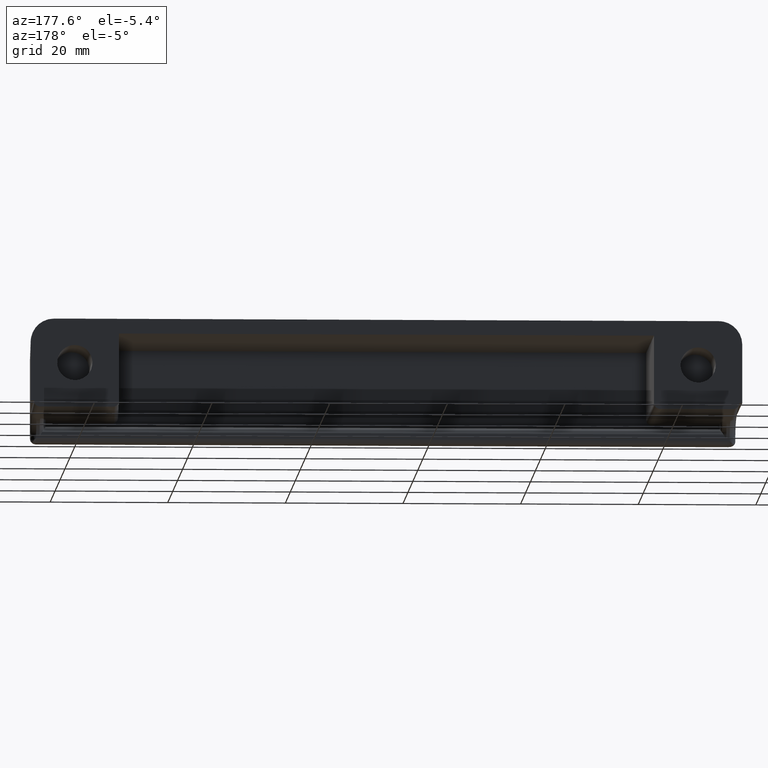
[diagram: clean part render]
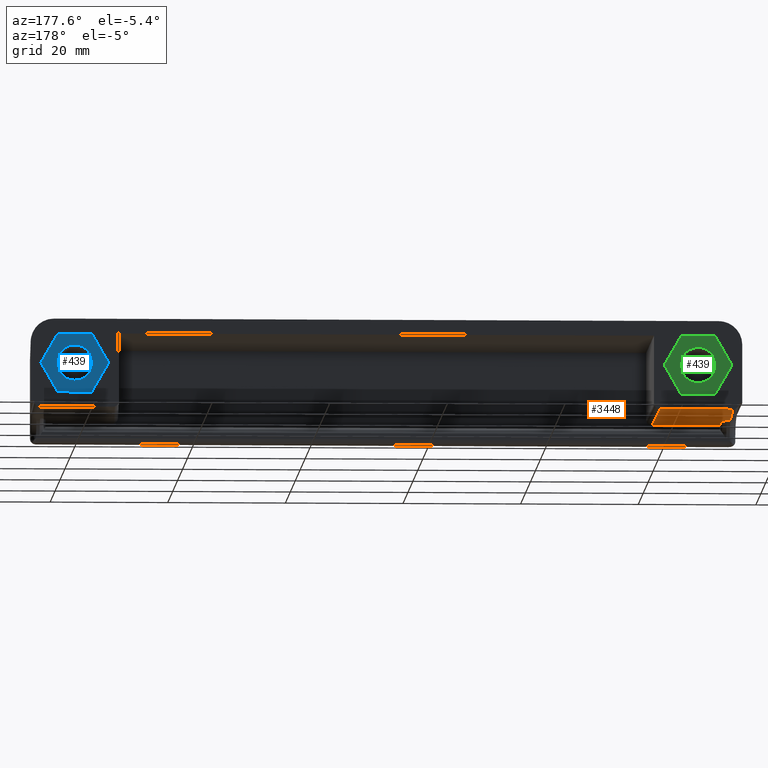
[diagram: same view with three faces highlighted in distinct colors, each labeled with its STEP entity id]
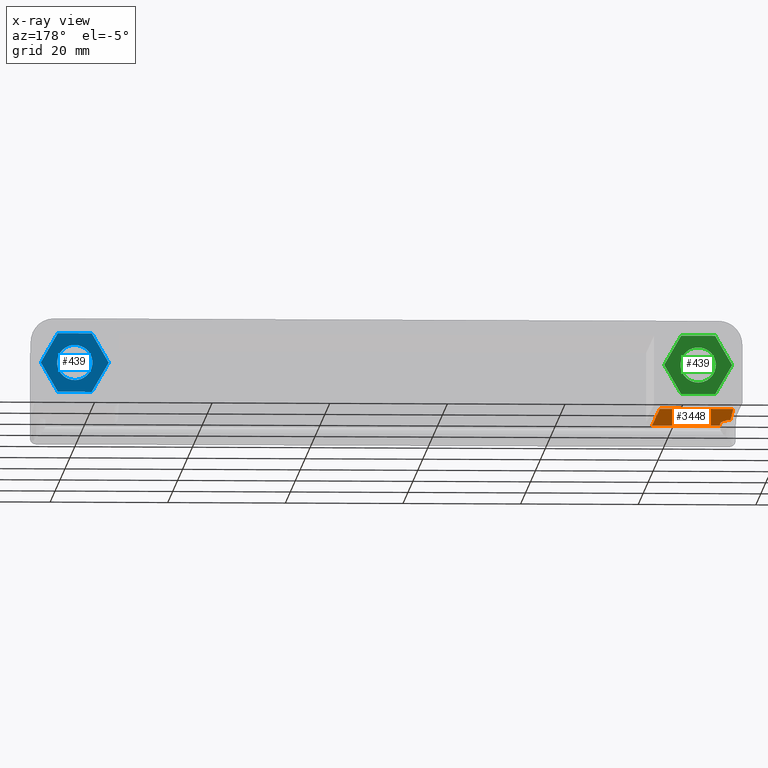
[diagram: x-ray of the same camera — body ghosted, the three highlighted faces saturated]
A machine part, auxiliary view with three faces highlighted in distinct colors.
The next image is the same camera in x-ray (body ghosted, the three faces saturated) — at least one of them is partly hidden behind the body in this view.
Their STEP definitions:

[orange] entity #3448 — the highlighted face is a freeform B-spline surface patch.
#625=CARTESIAN_POINT('',(-111.387362999999990,-11.706406187103941,-8.307338012903610));
#626=VERTEX_POINT('',#625);
#640=CARTESIAN_POINT('',(-110.387362999999990,-14.345887941823500,-8.489371159617638));
#641=VERTEX_POINT('',#640);
#642=CARTESIAN_POINT('',(-110.387362999999990,-14.345887941823500,-8.489371159617638));
#643=CARTESIAN_POINT('',(-110.387362999999990,-14.225465864256210,-8.481066192298121));
#644=CARTESIAN_POINT('',(-110.396813370679400,-14.106604035896989,-8.472868828326300));
#645=CARTESIAN_POINT('',(-110.430173036044100,-13.871267536835729,-8.456638731874905));
#646=CARTESIAN_POINT('',(-110.454129768531200,-13.754800698079640,-8.448606539529306));
#647=CARTESIAN_POINT('',(-110.513747004256000,-13.523799304460329,-8.432675415739318));
#648=CARTESIAN_POINT('',(-110.549570700804000,-13.408948175267939,-8.424754651591901));
#649=CARTESIAN_POINT('',(-110.629460174507900,-13.184140278891549,-8.409250665360366));
#650=CARTESIAN_POINT('',(-110.673610058144600,-13.073766476606480,-8.401638682247082));
#651=CARTESIAN_POINT('',(-110.815548400394110,-12.747225986621540,-8.379118658073699));
#652=CARTESIAN_POINT('',(-110.922772624118910,-12.535614664255039,-8.364524780005846));
#653=CARTESIAN_POINT('',(-111.149078432836010,-12.118116474489110,-8.335731813699255));
#654=CARTESIAN_POINT('',(-111.268275076433000,-11.912184767121509,-8.321529633050238));
#655=CARTESIAN_POINT('',(-111.387362999999990,-11.706406187103941,-8.307338012903610));
#656=B_SPLINE_CURVE_WITH_KNOTS('',3,(#642,#643,#644,#645,#646,#647,#648,#649,#650,#651,#652,#653,#654,#655),.UNSPECIFIED.,.F.,.U.,(4,2,2,2,2,2,4),(0.0,0.125000000000002,0.250000000000004,0.375000000000006,0.500000000000008,0.750000000000004,1.0),.UNSPECIFIED.);
#657=EDGE_CURVE('',#641,#626,#656,.T.);
#771=CARTESIAN_POINT('',(-98.887093457232808,-17.500000000000000,-8.706896036238559));
#772=VERTEX_POINT('',#771);
#788=CARTESIAN_POINT('',(-99.498206923338401,0.0,-7.499999999999799));
#789=VERTEX_POINT('',#788);
#790=CARTESIAN_POINT('',(-99.498206923338401,0.0,-7.499999999999799));
#791=CARTESIAN_POINT('',(-98.887093457232808,-17.500000000000000,-8.706896036238559));
#792=QUASI_UNIFORM_CURVE('',1,(#790,#791),.UNSPECIFIED.,.F.,.U.);
#793=EDGE_CURVE('',#789,#772,#792,.T.);
#2326=CARTESIAN_POINT('',(-111.958728000000210,-11.706406187103941,-8.307338012903610));
#2327=VERTEX_POINT('',#2326);
#2385=CARTESIAN_POINT('',(-111.958728000000210,0.0,-7.499999999999799));
#2386=VERTEX_POINT('',#2385);
#2404=CARTESIAN_POINT('',(-111.958728000000210,-11.706406187103941,-8.307338012903610));
#2405=CARTESIAN_POINT('',(-111.958728000000210,0.0,-7.499999999999799));
#2406=QUASI_UNIFORM_CURVE('',1,(#2404,#2405),.UNSPECIFIED.,.F.,.U.);
#2407=EDGE_CURVE('',#2327,#2386,#2406,.T.);
#3132=CARTESIAN_POINT('',(-110.387362999999990,-17.500000000000000,-8.706896036238559));
#3133=VERTEX_POINT('',#3132);
#3134=CARTESIAN_POINT('',(-110.387362999999990,-17.500000000000000,-8.706896036238559));
#3135=CARTESIAN_POINT('',(-110.387362999999990,-14.345887941823500,-8.489371159617638));
#3136=QUASI_UNIFORM_CURVE('',1,(#3134,#3135),.UNSPECIFIED.,.F.,.U.);
#3137=EDGE_CURVE('',#3133,#641,#3136,.T.);
#3235=CARTESIAN_POINT('',(-110.387362999999990,-17.500000000000000,-8.706896036238559));
#3236=CARTESIAN_POINT('',(-98.887093457232808,-17.500000000000000,-8.706896036238559));
#3237=QUASI_UNIFORM_CURVE('',1,(#3235,#3236),.UNSPECIFIED.,.F.,.U.);
#3238=EDGE_CURVE('',#3133,#772,#3237,.T.);
#3426=CARTESIAN_POINT('',(-112.611652976391200,0.874124966081606,-7.439715545328872));
#3427=CARTESIAN_POINT('',(-112.611652976391200,-18.374125435468180,-8.767180523280956));
#3428=CARTESIAN_POINT('',(-98.234164156669607,0.874124966081606,-7.439715545328872));
#3429=CARTESIAN_POINT('',(-98.234164156669607,-18.374125435468180,-8.767180523280956));
#3430=B_SPLINE_SURFACE_WITH_KNOTS('',1,1,((#3426,#3428),(#3427,#3429)),.UNSPECIFIED.,.F.,.F.,.U.,(2,2),(2,2),(0.0,19.293970736695201),(0.0,14.377488819721560),.UNSPECIFIED.);
#3431=CARTESIAN_POINT('',(-111.958728000000210,0.0,-7.499999999999799));
#3432=CARTESIAN_POINT('',(-99.498206923338401,0.0,-7.499999999999799));
#3433=QUASI_UNIFORM_CURVE('',1,(#3431,#3432),.UNSPECIFIED.,.F.,.U.);
#3434=EDGE_CURVE('',#2386,#789,#3433,.T.);
#3435=ORIENTED_EDGE('',*,*,#3434,.T.);
#3436=ORIENTED_EDGE('',*,*,#793,.T.);
#3437=ORIENTED_EDGE('',*,*,#3238,.F.);
#3438=ORIENTED_EDGE('',*,*,#3137,.T.);
#3439=ORIENTED_EDGE('',*,*,#657,.T.);
#3440=CARTESIAN_POINT('',(-111.958728000000210,-11.706406187103941,-8.307338012903610));
#3441=CARTESIAN_POINT('',(-111.387362999999990,-11.706406187103941,-8.307338012903610));
#3442=QUASI_UNIFORM_CURVE('',1,(#3440,#3441),.UNSPECIFIED.,.F.,.U.);
#3443=EDGE_CURVE('',#2327,#626,#3442,.T.);
#3444=ORIENTED_EDGE('',*,*,#3443,.F.);
#3445=ORIENTED_EDGE('',*,*,#2407,.T.);
#3446=EDGE_LOOP('',(#3435,#3436,#3437,#3438,#3439,#3444,#3445));
#3447=FACE_OUTER_BOUND('',#3446,.T.);
#3448=ADVANCED_FACE('',(#3447),#3430,.F.);

[blue] entity #439 — the highlighted face is a freeform B-spline surface patch.
#79=CARTESIAN_POINT('',(-2.990752001170108,8.326673E-017,0.235377287555510));
#80=VERTEX_POINT('',#79);
#86=CARTESIAN_POINT('',(0.0,0.0,3.0));
#87=VERTEX_POINT('',#86);
#88=CARTESIAN_POINT('',(0.0,0.0,3.0));
#89=CARTESIAN_POINT('',(-2.773171474282663,0.0,3.000000000000000));
#90=CARTESIAN_POINT('',(-2.990752001170108,8.326673E-017,0.235377287555511));
#98=(BOUNDED_CURVE()B_SPLINE_CURVE(2,(#88,#89,#90),.UNSPECIFIED.,.F.,.U.)B_SPLINE_CURVE_WITH_KNOTS((3,3),(0.0,0.236331300590125),.UNSPECIFIED.)CURVE()GEOMETRIC_REPRESENTATION_ITEM()RATIONAL_B_SPLINE_CURVE((1.0,0.723120658655155,0.969723356082825))REPRESENTATION_ITEM(''));
#99=EDGE_CURVE('',#87,#80,#98,.T.);
#101=CARTESIAN_POINT('',(2.990752001170109,8.326673E-017,-0.235377287555510));
#102=VERTEX_POINT('',#101);
#103=CARTESIAN_POINT('',(2.990752001170109,8.326673E-017,-0.235377287555510));
#104=CARTESIAN_POINT('',(3.000000000000000,0.0,-0.117870321396710));
#105=CARTESIAN_POINT('',(3.0,0.0,0.0));
#106=CARTESIAN_POINT('',(3.0,0.0,3.0));
#107=CARTESIAN_POINT('',(0.0,0.0,3.0));
#115=(BOUNDED_CURVE()B_SPLINE_CURVE(2,(#103,#104,#105,#106,#107),.UNSPECIFIED.,.F.,.U.)B_SPLINE_CURVE_WITH_KNOTS((3,2,3),(0.736331300590125,0.750000000000000,1.0),.UNSPECIFIED.)CURVE()GEOMETRIC_REPRESENTATION_ITEM()RATIONAL_B_SPLINE_CURVE((0.969723356082825,0.983986122531393,1.0,0.707106781186548,1.0))REPRESENTATION_ITEM(''));
#116=EDGE_CURVE('',#102,#87,#115,.T.);
#192=CARTESIAN_POINT('',(0.0,0.0,-3.0));
#193=VERTEX_POINT('',#192);
#194=CARTESIAN_POINT('',(0.0,0.0,-3.0));
#195=CARTESIAN_POINT('',(2.773171474282656,0.0,-3.000000000000000));
#196=CARTESIAN_POINT('',(2.990752001170109,8.326673E-017,-0.235377287555510));
#204=(BOUNDED_CURVE()B_SPLINE_CURVE(2,(#194,#195,#196),.UNSPECIFIED.,.F.,.U.)B_SPLINE_CURVE_WITH_KNOTS((3,3),(0.500000000000000,0.736331300590125),.UNSPECIFIED.)CURVE()GEOMETRIC_REPRESENTATION_ITEM()RATIONAL_B_SPLINE_CURVE((1.0,0.723120658655155,0.969723356082824))REPRESENTATION_ITEM(''));
#205=EDGE_CURVE('',#193,#102,#204,.T.);
#207=CARTESIAN_POINT('',(-2.990752001170109,8.326673E-017,0.235377287555511));
#208=CARTESIAN_POINT('',(-3.0,0.0,0.117870321396710));
#209=CARTESIAN_POINT('',(-3.0,0.0,0.0));
#210=CARTESIAN_POINT('',(-3.0,0.0,-3.0));
#211=CARTESIAN_POINT('',(0.0,0.0,-3.0));
#219=(BOUNDED_CURVE()B_SPLINE_CURVE(2,(#207,#208,#209,#210,#211),.UNSPECIFIED.,.F.,.U.)B_SPLINE_CURVE_WITH_KNOTS((3,2,3),(0.236331300590125,0.250000000000000,0.500000000000000),.UNSPECIFIED.)CURVE()GEOMETRIC_REPRESENTATION_ITEM()RATIONAL_B_SPLINE_CURVE((0.969723356082825,0.983986122531393,1.0,0.707106781186548,1.0))REPRESENTATION_ITEM(''));
#220=EDGE_CURVE('',#80,#193,#219,.T.);
#293=CARTESIAN_POINT('',(-2.886750999999890,0.0,-5.0));
#294=VERTEX_POINT('',#293);
#295=CARTESIAN_POINT('',(-5.773502999999890,0.0,0.0));
#296=VERTEX_POINT('',#295);
#297=CARTESIAN_POINT('',(-2.886750999999890,0.0,-5.0));
#298=CARTESIAN_POINT('',(-5.773502999999890,0.0,0.0));
#299=QUASI_UNIFORM_CURVE('',1,(#297,#298),.UNSPECIFIED.,.F.,.U.);
#300=EDGE_CURVE('',#294,#296,#299,.T.);
#321=CARTESIAN_POINT('',(2.886751000000120,0.0,-5.0));
#322=VERTEX_POINT('',#321);
#323=CARTESIAN_POINT('',(2.886751000000120,0.0,-5.0));
#324=CARTESIAN_POINT('',(-2.886750999999890,0.0,-5.0));
#325=QUASI_UNIFORM_CURVE('',1,(#323,#324),.UNSPECIFIED.,.F.,.U.);
#326=EDGE_CURVE('',#322,#294,#325,.T.);
#343=CARTESIAN_POINT('',(5.773503000000120,0.0,0.0));
#344=VERTEX_POINT('',#343);
#345=CARTESIAN_POINT('',(5.773503000000120,0.0,0.0));
#346=CARTESIAN_POINT('',(2.886751000000120,0.0,-5.0));
#347=QUASI_UNIFORM_CURVE('',1,(#345,#346),.UNSPECIFIED.,.F.,.U.);
#348=EDGE_CURVE('',#344,#322,#347,.T.);
#365=CARTESIAN_POINT('',(2.886751000000120,0.0,5.0));
#366=VERTEX_POINT('',#365);
#367=CARTESIAN_POINT('',(2.886751000000120,0.0,5.0));
#368=CARTESIAN_POINT('',(5.773503000000120,0.0,0.0));
#369=QUASI_UNIFORM_CURVE('',1,(#367,#368),.UNSPECIFIED.,.F.,.U.);
#370=EDGE_CURVE('',#366,#344,#369,.T.);
#387=CARTESIAN_POINT('',(-2.886750999999890,0.0,5.0));
#388=VERTEX_POINT('',#387);
#389=CARTESIAN_POINT('',(-2.886750999999890,0.0,5.0));
#390=CARTESIAN_POINT('',(2.886751000000120,0.0,5.0));
#391=QUASI_UNIFORM_CURVE('',1,(#389,#390),.UNSPECIFIED.,.F.,.U.);
#392=EDGE_CURVE('',#388,#366,#391,.T.);
#409=CARTESIAN_POINT('',(-5.773502999999890,0.0,0.0));
#410=CARTESIAN_POINT('',(-2.886750999999890,0.0,5.0));
#411=QUASI_UNIFORM_CURVE('',1,(#409,#410),.UNSPECIFIED.,.F.,.U.);
#412=EDGE_CURVE('',#296,#388,#411,.T.);
#420=CARTESIAN_POINT('',(-6.350275777670506,0.0,5.499499980618059));
#421=CARTESIAN_POINT('',(6.350275364717620,0.0,5.499499980618059));
#422=CARTESIAN_POINT('',(-6.350275777670506,0.0,-5.499500248838960));
#423=CARTESIAN_POINT('',(6.350275364717620,0.0,-5.499500248838960));
#424=B_SPLINE_SURFACE_WITH_KNOTS('',1,1,((#420,#422),(#421,#423)),.UNSPECIFIED.,.F.,.F.,.U.,(2,2),(2,2),(0.0,12.700551142388131),(0.0,10.999000229457019),.UNSPECIFIED.);
#425=ORIENTED_EDGE('',*,*,#412,.T.);
#426=ORIENTED_EDGE('',*,*,#392,.T.);
#427=ORIENTED_EDGE('',*,*,#370,.T.);
#428=ORIENTED_EDGE('',*,*,#348,.T.);
#429=ORIENTED_EDGE('',*,*,#326,.T.);
#430=ORIENTED_EDGE('',*,*,#300,.T.);
#431=EDGE_LOOP('',(#425,#426,#427,#428,#429,#430));
#432=FACE_OUTER_BOUND('',#431,.T.);
#433=ORIENTED_EDGE('',*,*,#205,.T.);
#434=ORIENTED_EDGE('',*,*,#116,.T.);
#435=ORIENTED_EDGE('',*,*,#99,.T.);
#436=ORIENTED_EDGE('',*,*,#220,.T.);
#437=EDGE_LOOP('',(#433,#434,#435,#436));
#438=FACE_BOUND('',#437,.T.);
#439=ADVANCED_FACE('',(#432,#438),#424,.T.);

[green] entity #439 — the highlighted face is a freeform B-spline surface patch.
#79=CARTESIAN_POINT('',(-2.990752001170108,8.326673E-017,0.235377287555510));
#80=VERTEX_POINT('',#79);
#86=CARTESIAN_POINT('',(0.0,0.0,3.0));
#87=VERTEX_POINT('',#86);
#88=CARTESIAN_POINT('',(0.0,0.0,3.0));
#89=CARTESIAN_POINT('',(-2.773171474282663,0.0,3.000000000000000));
#90=CARTESIAN_POINT('',(-2.990752001170108,8.326673E-017,0.235377287555511));
#98=(BOUNDED_CURVE()B_SPLINE_CURVE(2,(#88,#89,#90),.UNSPECIFIED.,.F.,.U.)B_SPLINE_CURVE_WITH_KNOTS((3,3),(0.0,0.236331300590125),.UNSPECIFIED.)CURVE()GEOMETRIC_REPRESENTATION_ITEM()RATIONAL_B_SPLINE_CURVE((1.0,0.723120658655155,0.969723356082825))REPRESENTATION_ITEM(''));
#99=EDGE_CURVE('',#87,#80,#98,.T.);
#101=CARTESIAN_POINT('',(2.990752001170109,8.326673E-017,-0.235377287555510));
#102=VERTEX_POINT('',#101);
#103=CARTESIAN_POINT('',(2.990752001170109,8.326673E-017,-0.235377287555510));
#104=CARTESIAN_POINT('',(3.000000000000000,0.0,-0.117870321396710));
#105=CARTESIAN_POINT('',(3.0,0.0,0.0));
#106=CARTESIAN_POINT('',(3.0,0.0,3.0));
#107=CARTESIAN_POINT('',(0.0,0.0,3.0));
#115=(BOUNDED_CURVE()B_SPLINE_CURVE(2,(#103,#104,#105,#106,#107),.UNSPECIFIED.,.F.,.U.)B_SPLINE_CURVE_WITH_KNOTS((3,2,3),(0.736331300590125,0.750000000000000,1.0),.UNSPECIFIED.)CURVE()GEOMETRIC_REPRESENTATION_ITEM()RATIONAL_B_SPLINE_CURVE((0.969723356082825,0.983986122531393,1.0,0.707106781186548,1.0))REPRESENTATION_ITEM(''));
#116=EDGE_CURVE('',#102,#87,#115,.T.);
#192=CARTESIAN_POINT('',(0.0,0.0,-3.0));
#193=VERTEX_POINT('',#192);
#194=CARTESIAN_POINT('',(0.0,0.0,-3.0));
#195=CARTESIAN_POINT('',(2.773171474282656,0.0,-3.000000000000000));
#196=CARTESIAN_POINT('',(2.990752001170109,8.326673E-017,-0.235377287555510));
#204=(BOUNDED_CURVE()B_SPLINE_CURVE(2,(#194,#195,#196),.UNSPECIFIED.,.F.,.U.)B_SPLINE_CURVE_WITH_KNOTS((3,3),(0.500000000000000,0.736331300590125),.UNSPECIFIED.)CURVE()GEOMETRIC_REPRESENTATION_ITEM()RATIONAL_B_SPLINE_CURVE((1.0,0.723120658655155,0.969723356082824))REPRESENTATION_ITEM(''));
#205=EDGE_CURVE('',#193,#102,#204,.T.);
#207=CARTESIAN_POINT('',(-2.990752001170109,8.326673E-017,0.235377287555511));
#208=CARTESIAN_POINT('',(-3.0,0.0,0.117870321396710));
#209=CARTESIAN_POINT('',(-3.0,0.0,0.0));
#210=CARTESIAN_POINT('',(-3.0,0.0,-3.0));
#211=CARTESIAN_POINT('',(0.0,0.0,-3.0));
#219=(BOUNDED_CURVE()B_SPLINE_CURVE(2,(#207,#208,#209,#210,#211),.UNSPECIFIED.,.F.,.U.)B_SPLINE_CURVE_WITH_KNOTS((3,2,3),(0.236331300590125,0.250000000000000,0.500000000000000),.UNSPECIFIED.)CURVE()GEOMETRIC_REPRESENTATION_ITEM()RATIONAL_B_SPLINE_CURVE((0.969723356082825,0.983986122531393,1.0,0.707106781186548,1.0))REPRESENTATION_ITEM(''));
#220=EDGE_CURVE('',#80,#193,#219,.T.);
#293=CARTESIAN_POINT('',(-2.886750999999890,0.0,-5.0));
#294=VERTEX_POINT('',#293);
#295=CARTESIAN_POINT('',(-5.773502999999890,0.0,0.0));
#296=VERTEX_POINT('',#295);
#297=CARTESIAN_POINT('',(-2.886750999999890,0.0,-5.0));
#298=CARTESIAN_POINT('',(-5.773502999999890,0.0,0.0));
#299=QUASI_UNIFORM_CURVE('',1,(#297,#298),.UNSPECIFIED.,.F.,.U.);
#300=EDGE_CURVE('',#294,#296,#299,.T.);
#321=CARTESIAN_POINT('',(2.886751000000120,0.0,-5.0));
#322=VERTEX_POINT('',#321);
#323=CARTESIAN_POINT('',(2.886751000000120,0.0,-5.0));
#324=CARTESIAN_POINT('',(-2.886750999999890,0.0,-5.0));
#325=QUASI_UNIFORM_CURVE('',1,(#323,#324),.UNSPECIFIED.,.F.,.U.);
#326=EDGE_CURVE('',#322,#294,#325,.T.);
#343=CARTESIAN_POINT('',(5.773503000000120,0.0,0.0));
#344=VERTEX_POINT('',#343);
#345=CARTESIAN_POINT('',(5.773503000000120,0.0,0.0));
#346=CARTESIAN_POINT('',(2.886751000000120,0.0,-5.0));
#347=QUASI_UNIFORM_CURVE('',1,(#345,#346),.UNSPECIFIED.,.F.,.U.);
#348=EDGE_CURVE('',#344,#322,#347,.T.);
#365=CARTESIAN_POINT('',(2.886751000000120,0.0,5.0));
#366=VERTEX_POINT('',#365);
#367=CARTESIAN_POINT('',(2.886751000000120,0.0,5.0));
#368=CARTESIAN_POINT('',(5.773503000000120,0.0,0.0));
#369=QUASI_UNIFORM_CURVE('',1,(#367,#368),.UNSPECIFIED.,.F.,.U.);
#370=EDGE_CURVE('',#366,#344,#369,.T.);
#387=CARTESIAN_POINT('',(-2.886750999999890,0.0,5.0));
#388=VERTEX_POINT('',#387);
#389=CARTESIAN_POINT('',(-2.886750999999890,0.0,5.0));
#390=CARTESIAN_POINT('',(2.886751000000120,0.0,5.0));
#391=QUASI_UNIFORM_CURVE('',1,(#389,#390),.UNSPECIFIED.,.F.,.U.);
#392=EDGE_CURVE('',#388,#366,#391,.T.);
#409=CARTESIAN_POINT('',(-5.773502999999890,0.0,0.0));
#410=CARTESIAN_POINT('',(-2.886750999999890,0.0,5.0));
#411=QUASI_UNIFORM_CURVE('',1,(#409,#410),.UNSPECIFIED.,.F.,.U.);
#412=EDGE_CURVE('',#296,#388,#411,.T.);
#420=CARTESIAN_POINT('',(-6.350275777670506,0.0,5.499499980618059));
#421=CARTESIAN_POINT('',(6.350275364717620,0.0,5.499499980618059));
#422=CARTESIAN_POINT('',(-6.350275777670506,0.0,-5.499500248838960));
#423=CARTESIAN_POINT('',(6.350275364717620,0.0,-5.499500248838960));
#424=B_SPLINE_SURFACE_WITH_KNOTS('',1,1,((#420,#422),(#421,#423)),.UNSPECIFIED.,.F.,.F.,.U.,(2,2),(2,2),(0.0,12.700551142388131),(0.0,10.999000229457019),.UNSPECIFIED.);
#425=ORIENTED_EDGE('',*,*,#412,.T.);
#426=ORIENTED_EDGE('',*,*,#392,.T.);
#427=ORIENTED_EDGE('',*,*,#370,.T.);
#428=ORIENTED_EDGE('',*,*,#348,.T.);
#429=ORIENTED_EDGE('',*,*,#326,.T.);
#430=ORIENTED_EDGE('',*,*,#300,.T.);
#431=EDGE_LOOP('',(#425,#426,#427,#428,#429,#430));
#432=FACE_OUTER_BOUND('',#431,.T.);
#433=ORIENTED_EDGE('',*,*,#205,.T.);
#434=ORIENTED_EDGE('',*,*,#116,.T.);
#435=ORIENTED_EDGE('',*,*,#99,.T.);
#436=ORIENTED_EDGE('',*,*,#220,.T.);
#437=EDGE_LOOP('',(#433,#434,#435,#436));
#438=FACE_BOUND('',#437,.T.);
#439=ADVANCED_FACE('',(#432,#438),#424,.T.);